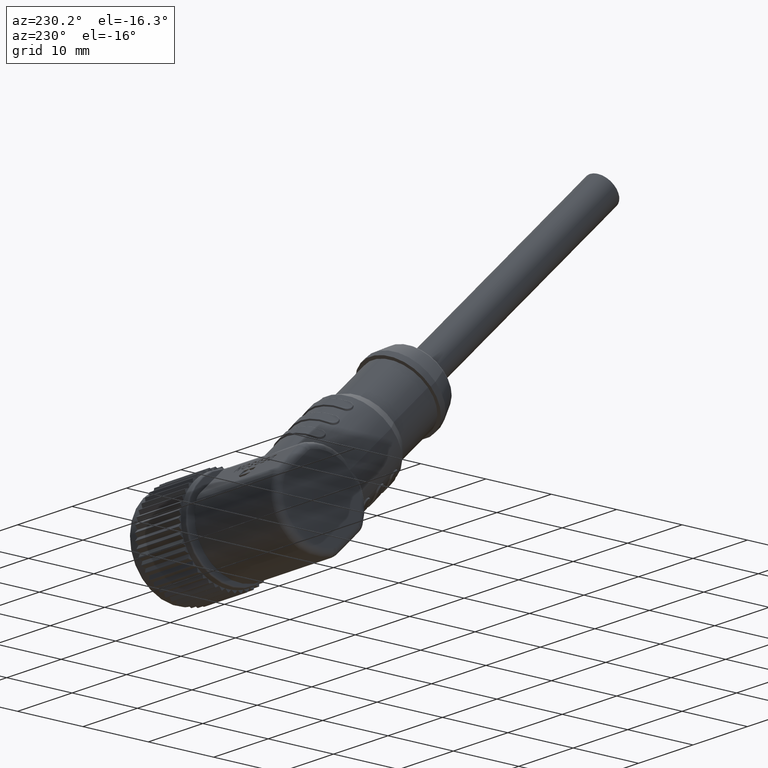
[diagram: clean part render]
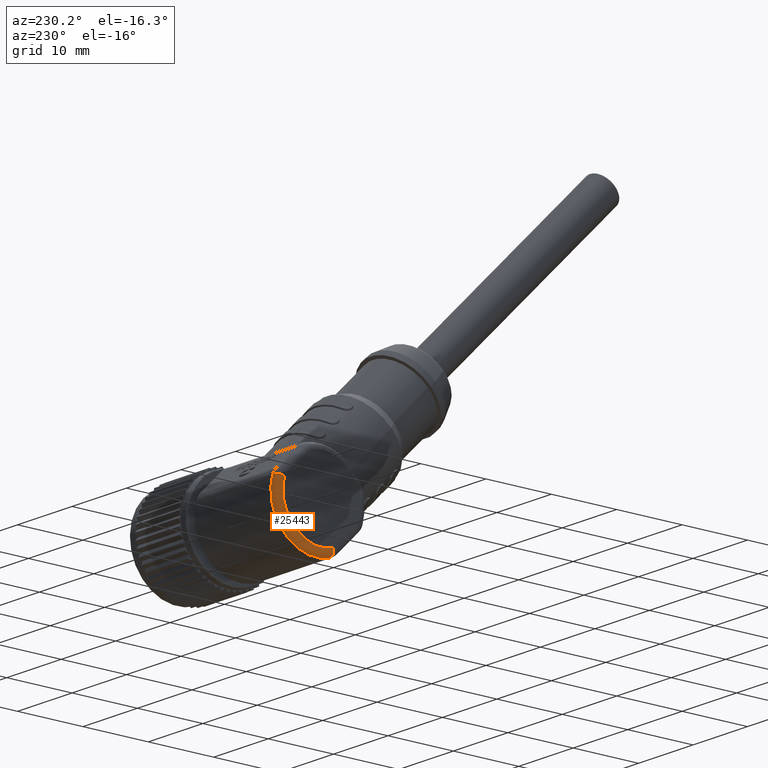
[diagram: same view with one face highlighted and labeled with its STEP entity id]
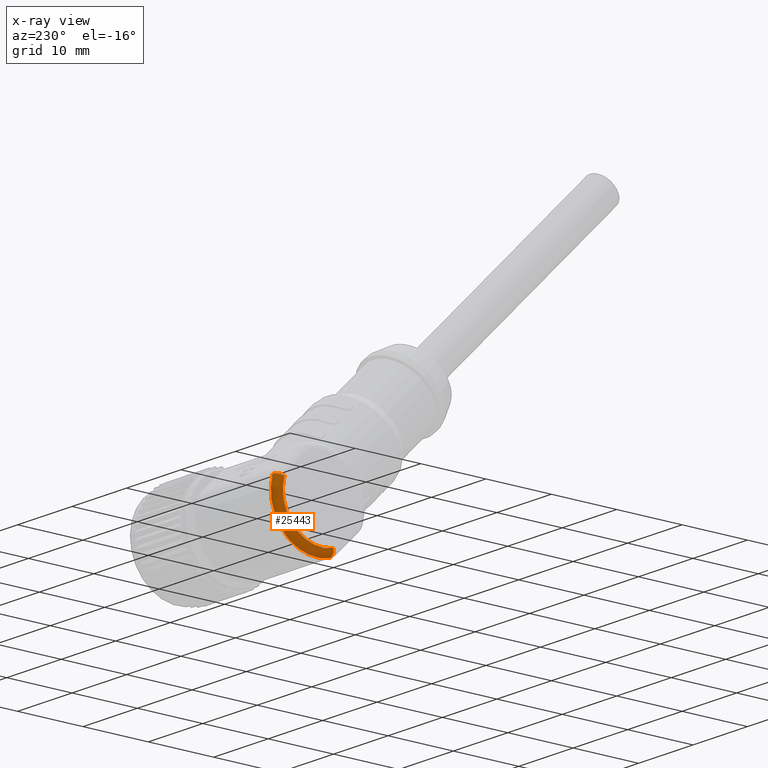
[diagram: x-ray of the same camera — body ghosted, the highlighted face saturated]
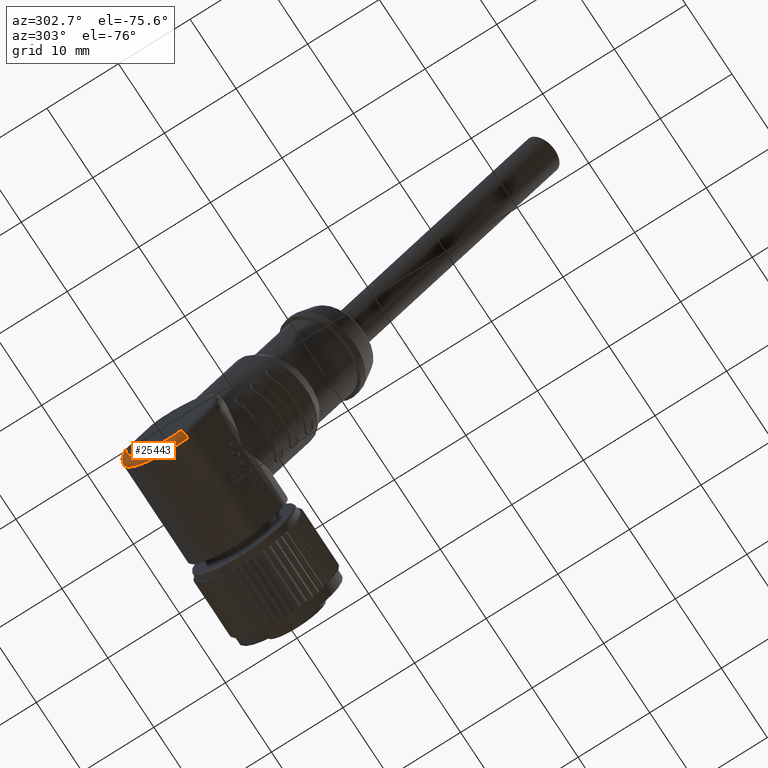
[diagram: same view with one face highlighted and labeled with its STEP entity id]
A machine part, auxiliary view. The second image highlights one B-rep face of the part: STEP entity #25443.
The next image is the same camera in x-ray: the body ghosted, the highlighted face saturated — about 0% of this face is hidden behind the body in this view.
A second angle (auxiliary view) of the same face is appended — the face is thin or edge-on in the first view.
In plain terms, the highlighted toroidal blend (fillet) surface has major radius 6 mm and minor (blend) radius 1 mm.
Its self-contained STEP definition (entity closure, byte-faithful):
#1936=CARTESIAN_POINT('',(-2.69E1,-1.718381129815E0,-5.748666479515E0));
#1937=DIRECTION('',(0.E0,9.581110799191E-1,-2.863968549692E-1));
#1938=DIRECTION('',(0.E0,-2.863968549692E-1,-9.581110799191E-1));
#1939=AXIS2_PLACEMENT_3D('',#1936,#1937,#1938);
#1941=CARTESIAN_POINT('',(-2.69E1,0.E0,0.E0));
#1942=DIRECTION('',(1.E0,0.E0,0.E0));
#1943=DIRECTION('',(0.E0,-2.863968549692E-1,-9.581110799191E-1));
#1944=AXIS2_PLACEMENT_3D('',#1941,#1942,#1943);
#1946=CARTESIAN_POINT('',(-2.69E1,5.748666479515E0,1.718381129815E0));
#1947=DIRECTION('',(0.E0,-2.863968549692E-1,9.581110799191E-1));
#1948=DIRECTION('',(0.E0,9.581110799191E-1,2.863968549692E-1));
#1949=AXIS2_PLACEMENT_3D('',#1946,#1947,#1948);
#1951=CARTESIAN_POINT('',(-2.79E1,0.E0,0.E0));
#1952=DIRECTION('',(-1.E0,0.E0,0.E0));
#1953=DIRECTION('',(0.E0,9.581110799191E-1,2.863968549692E-1));
#1954=AXIS2_PLACEMENT_3D('',#1951,#1952,#1953);
#21797=CARTESIAN_POINT('',(-2.69E1,-2.004777984785E0,-6.706777559434E0));
#21798=VERTEX_POINT('',#21797);
#21799=CARTESIAN_POINT('',(-2.79E1,-1.718381129815E0,-5.748666479515E0));
#21800=VERTEX_POINT('',#21799);
#21827=CARTESIAN_POINT('',(-2.69E1,6.706777559434E0,2.004777984785E0));
#21828=VERTEX_POINT('',#21827);
#21831=CARTESIAN_POINT('',(-2.79E1,5.748666479515E0,1.718381129815E0));
#21832=VERTEX_POINT('',#21831);
#25429=CARTESIAN_POINT('',(-2.69E1,0.E0,0.E0));
#25430=DIRECTION('',(1.E0,0.E0,0.E0));
#25431=DIRECTION('',(0.E0,-7.052737104962E-1,7.089351121809E-1));
#25432=AXIS2_PLACEMENT_3D('',#25429,#25430,#25431);
#25433=TOROIDAL_SURFACE('',#25432,6.E0,1.E0);
#25434=ORIENTED_EDGE('',*,*,#25420,.F.);
#25436=ORIENTED_EDGE('',*,*,#25435,.T.);
#25438=ORIENTED_EDGE('',*,*,#25437,.T.);
#25440=ORIENTED_EDGE('',*,*,#25439,.T.);
#25441=EDGE_LOOP('',(#25434,#25436,#25438,#25440));
#25442=FACE_OUTER_BOUND('',#25441,.F.);
#25443=ADVANCED_FACE('',(#25442),#25433,.T.);
#1940=CIRCLE('',#1939,1.E0);
#1945=CIRCLE('',#1944,7.E0);
#1950=CIRCLE('',#1949,1.E0);
#1955=CIRCLE('',#1954,6.E0);
#25420=EDGE_CURVE('',#21798,#21800,#1940,.T.);
#25435=EDGE_CURVE('',#21798,#21828,#1945,.T.);
#25437=EDGE_CURVE('',#21828,#21832,#1950,.T.);
#25439=EDGE_CURVE('',#21832,#21800,#1955,.T.);